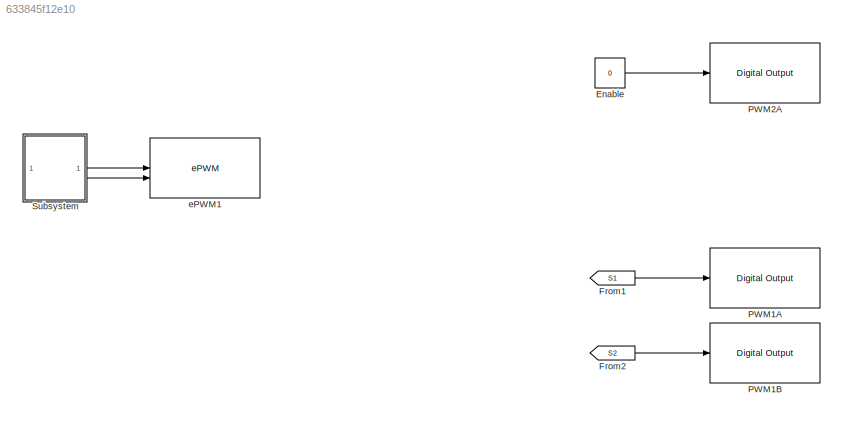
MODEL slx_633845f12e10
KIND model
CONFIG AbsTol = auto
CONFIG EnableMultiTasking = on
CONFIG FixedStep = 1e-5
CONFIG MaxStep = auto
CONFIG MinStep = auto
CONFIG RelTol = 1e-3
CONFIG SampleTimeConstraint = Unconstrained
CONFIG SolverName = FixedStepAuto
CONFIG StartTime = 0.0
CONFIG StopTime = Inf
BLOCK [Constant] Enable
  Value = 0
BLOCK [From] From1
  Commented = on
  GotoTag = S1
BLOCK [From] From2
  Commented = on
  GotoTag = S2
BLOCK [Reference] PWM1A  REF=c2837xDlib/Digital Output
  Commented = on
  SourceBlock = c2837xDlib/Digital Output
  SourceType = F2837x GPIO Digital Output
  UserDataPersistent = on
BLOCK [Reference] PWM1B  REF=c2837xDlib/Digital Output
  Commented = on
  SourceBlock = c2837xDlib/Digital Output
  SourceType = F2837x GPIO Digital Output
  UserDataPersistent = on
BLOCK [Reference] PWM2A  REF=c2837xDlib/Digital Output
  SourceBlock = c2837xDlib/Digital Output
  SourceType = F2837x GPIO Digital Output
  UserDataPersistent = on
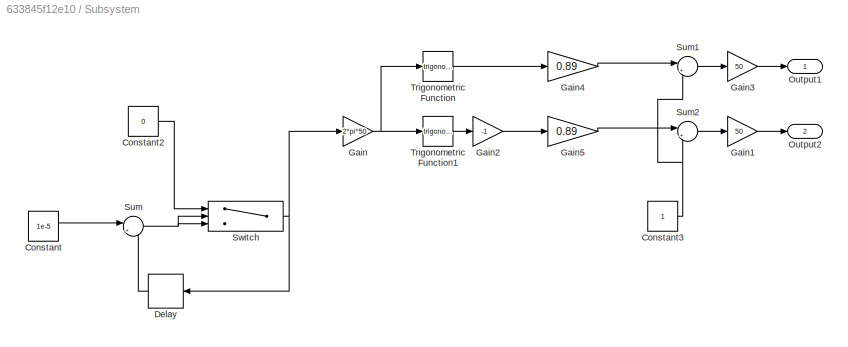
BLOCK [SubSystem] Subsystem
BLOCK [Constant] Subsystem/Constant
  Value = 1e-5
BLOCK [Constant] Subsystem/Constant2
  Value = 0
BLOCK [Constant] Subsystem/Constant3
BLOCK [Delay] Subsystem/Delay
  DelayLength = 1
  InputPortMap = u0
  NameLocation = top
BLOCK [Gain] Subsystem/Gain
  Gain = 2*pi*50
BLOCK [Gain] Subsystem/Gain1
  Gain = 50
BLOCK [Gain] Subsystem/Gain2
  Gain = -1
BLOCK [Gain] Subsystem/Gain3
  Gain = 50
BLOCK [Gain] Subsystem/Gain4
  Gain = 0.89
BLOCK [Gain] Subsystem/Gain5
  Gain = 0.89
BLOCK [Outport] Subsystem/Output1
BLOCK [Outport] Subsystem/Output2
  Port = 2
BLOCK [Sum] Subsystem/Sum
  Inputs = |++
BLOCK [Sum] Subsystem/Sum1
  Inputs = |++
BLOCK [Sum] Subsystem/Sum2
  Inputs = |++
BLOCK [Switch] Subsystem/Switch
  InputSameDT = off
  SaturateOnIntegerOverflow = off
  Threshold = 1
BLOCK [Trigonometry] Subsystem/Trigonometric Function
BLOCK [Trigonometry] Subsystem/Trigonometric Function1
BLOCK [Reference] ePWM1  REF=c2802xlib/ePWM
  LibrarySourceBlock = c2837xDlib/ePWM
  SourceBlock = c2802xlib/ePWM
  SourceType = ePWM Type 1-4
  UserDataPersistent = on
LINE Enable:1 -> PWM2A:1
LINE From1:1 -> PWM1A:1
LINE From2:1 -> PWM1B:1
LINE Subsystem/Constant2:1 -> Subsystem/Switch:1
NET Subsystem/Constant3:1 -> Subsystem/Sum1:2, Subsystem/Sum2:2
LINE Subsystem/Constant:1 -> Subsystem/Sum:1
LINE Subsystem/Delay:1 -> Subsystem/Sum:2
LINE Subsystem/Gain1:1 -> Subsystem/Output2:1
LINE Subsystem/Gain2:1 -> Subsystem/Gain5:1
LINE Subsystem/Gain3:1 -> Subsystem/Output1:1
LINE Subsystem/Gain4:1 -> Subsystem/Sum1:1
LINE Subsystem/Gain5:1 -> Subsystem/Sum2:1
NET Subsystem/Gain:1 -> Subsystem/Trigonometric Function1:1, Subsystem/Trigonometric Function:1
LINE Subsystem/Sum1:1 -> Subsystem/Gain3:1
LINE Subsystem/Sum2:1 -> Subsystem/Gain1:1
NET Subsystem/Sum:1 -> Subsystem/Switch:2, Subsystem/Switch:3
NET Subsystem/Switch:1 -> Subsystem/Delay:1, Subsystem/Gain:1
LINE Subsystem/Trigonometric Function1:1 -> Subsystem/Gain2:1
LINE Subsystem/Trigonometric Function:1 -> Subsystem/Gain4:1
LINE Subsystem:1 -> ePWM1:1
LINE Subsystem:2 -> ePWM1:2
note: NET lines group one-source signal fan-out (src -> all destinations, sorted); 1:1 wires keep LINE
